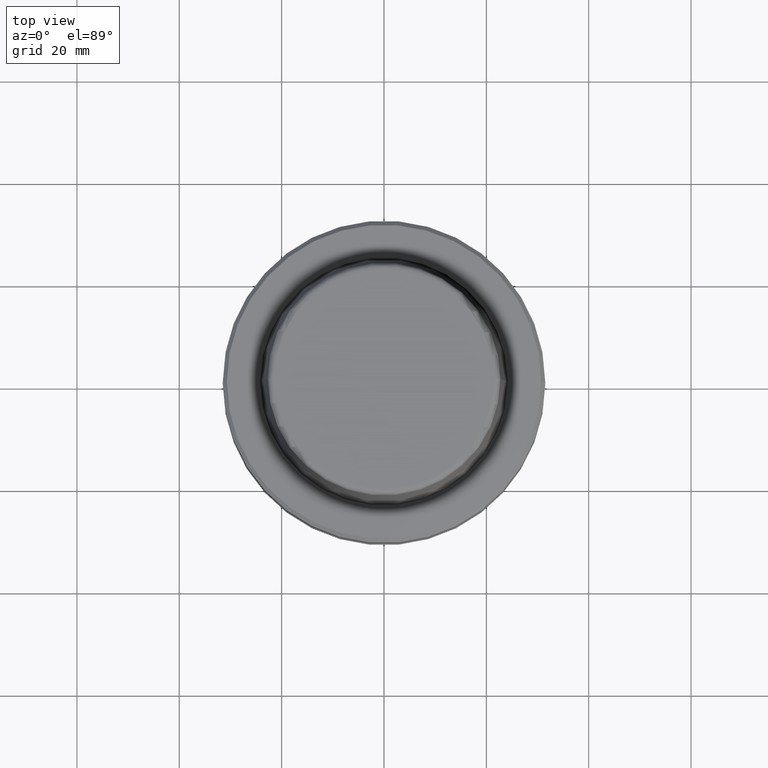
[diagram: clean part render]
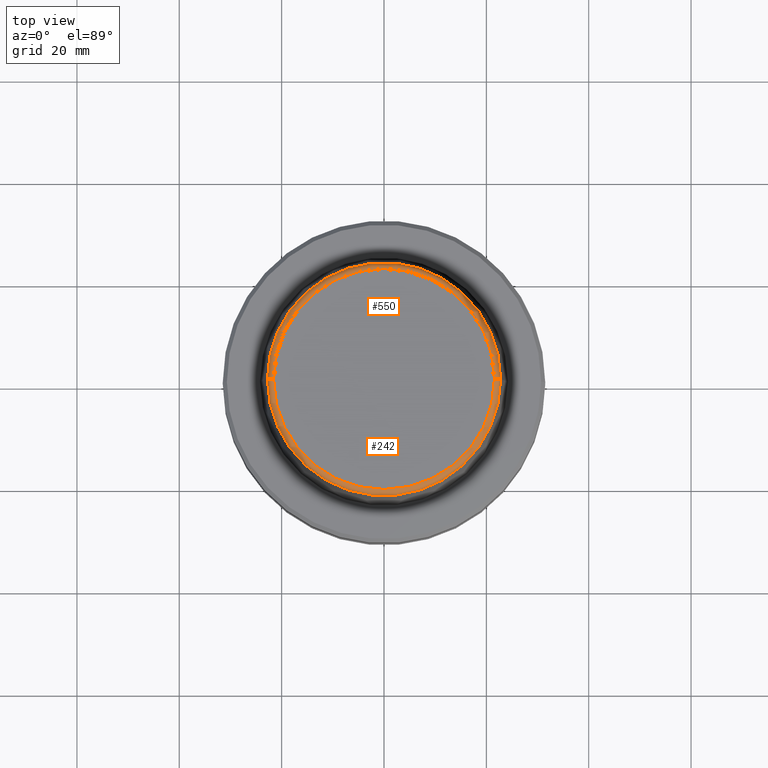
[diagram: same view with one multi-face feature highlighted, each face labeled with its STEP entity id]
A machine part, top view. The highlighted faces form ONE feature: a constant-radius fillet chain: 2 tangent blend faces with common blend radius 1.2 mm. The faces share edges in the B-rep.
Their STEP definitions:
[1] entity #242 (Torus):
#35 = DIRECTION ( 'NONE',  ( 1.000000000000000000, 0.0000000000000000000, 0.0000000000000000000 ) ) ;
#82 = AXIS2_PLACEMENT_3D ( 'NONE', #1126, #1120, #996 ) ;
#139 = CIRCLE ( 'NONE', #824, 22.77954767978229000 ) ;
#148 = EDGE_LOOP ( 'NONE', ( #1023, #189, #154, #311 ) ) ;
#154 = ORIENTED_EDGE ( 'NONE', *, *, #1402, .T. ) ;
#163 = AXIS2_PLACEMENT_3D ( 'NONE', #814, #1174, #706 ) ;
#189 = ORIENTED_EDGE ( 'NONE', *, *, #1314, .T. ) ;
#242 = ADVANCED_FACE ( 'NONE', ( #744 ), #1290, .T. ) ;
#311 = ORIENTED_EDGE ( 'NONE', *, *, #704, .F. ) ;
#315 = CARTESIAN_POINT ( 'NONE',  ( -21.58105086660076600, 2.716303250904432400E-015, 31.89999999999981700 ) ) ;
#375 = CARTESIAN_POINT ( 'NONE',  ( 22.77954767978229000, 2.876381753844083400E-015, 30.76004488982331300 ) ) ;
#431 = VERTEX_POINT ( 'NONE', #375 ) ;
#447 = CARTESIAN_POINT ( 'NONE',  ( -21.58105086660081900, 2.642916486601890300E-015, 30.69999999999995000 ) ) ;
#540 = AXIS2_PLACEMENT_3D ( 'NONE', #447, #863, #641 ) ;
#599 = CARTESIAN_POINT ( 'NONE',  ( 0.0000000000000000000, 0.0000000000000000000, 30.76004488982331300 ) ) ;
#608 = EDGE_CURVE ( 'NONE', #701, #1345, #1051, .T. ) ;
#641 = DIRECTION ( 'NONE',  ( -1.000000000000000000, 1.224646799147355700E-016, 0.0000000000000000000 ) ) ;
#701 = VERTEX_POINT ( 'NONE', #1321 ) ;
#704 = EDGE_CURVE ( 'NONE', #1345, #1405, #1175, .T. ) ;
#706 = DIRECTION ( 'NONE',  ( 1.000000000000000000, 0.0000000000000000000, 0.0000000000000000000 ) ) ;
#744 = FACE_OUTER_BOUND ( 'NONE', #148, .T. ) ;
#814 = CARTESIAN_POINT ( 'NONE',  ( 0.0000000000000000000, 0.0000000000000000000, 30.69999999999995000 ) ) ;
#824 = AXIS2_PLACEMENT_3D ( 'NONE', #599, #1134, #1014 ) ;
#833 = AXIS2_PLACEMENT_3D ( 'NONE', #1142, #990, #35 ) ;
#863 = DIRECTION ( 'NONE',  ( 1.224646799147353200E-016, 1.000000000000000000, 0.0000000000000000000 ) ) ;
#930 = CARTESIAN_POINT ( 'NONE',  ( 21.58105086660076600, 0.0000000000000000000, 31.89999999999981700 ) ) ;
#990 = DIRECTION ( 'NONE',  ( -0.0000000000000000000, -0.0000000000000000000, 1.000000000000000000 ) ) ;
#996 = DIRECTION ( 'NONE',  ( 0.0000000000000000000, 0.0000000000000000000, -1.000000000000000000 ) ) ;
#1014 = DIRECTION ( 'NONE',  ( 1.000000000000000000, 0.0000000000000000000, 0.0000000000000000000 ) ) ;
#1023 = ORIENTED_EDGE ( 'NONE', *, *, #608, .F. ) ;
#1051 = CIRCLE ( 'NONE', #540, 1.199999999999940700 ) ;
#1111 = CIRCLE ( 'NONE', #82, 1.199999999999940700 ) ;
#1120 = DIRECTION ( 'NONE',  ( 0.0000000000000000000, -1.000000000000000000, 0.0000000000000000000 ) ) ;
#1126 = CARTESIAN_POINT ( 'NONE',  ( 21.58105086660081900, 0.0000000000000000000, 30.69999999999995000 ) ) ;
#1134 = DIRECTION ( 'NONE',  ( -0.0000000000000000000, -0.0000000000000000000, 1.000000000000000000 ) ) ;
#1142 = CARTESIAN_POINT ( 'NONE',  ( 0.0000000000000000000, 0.0000000000000000000, 31.89999999999981700 ) ) ;
#1174 = DIRECTION ( 'NONE',  ( -0.0000000000000000000, -0.0000000000000000000, 1.000000000000000000 ) ) ;
#1175 = CIRCLE ( 'NONE', #833, 21.58105086660076600 ) ;
#1290 = TOROIDAL_SURFACE ( 'NONE', #163, 21.58105086660081900, 1.199999999999942200 ) ;
#1314 = EDGE_CURVE ( 'NONE', #701, #431, #139, .T. ) ;
#1321 = CARTESIAN_POINT ( 'NONE',  ( -22.77954767978229000, 0.0000000000000000000, 30.76004488982331300 ) ) ;
#1345 = VERTEX_POINT ( 'NONE', #315 ) ;
#1402 = EDGE_CURVE ( 'NONE', #431, #1405, #1111, .T. ) ;
#1405 = VERTEX_POINT ( 'NONE', #930 ) ;
[2] entity #550 (Torus):
#1 = ORIENTED_EDGE ( 'NONE', *, *, #608, .T. ) ;
#82 = AXIS2_PLACEMENT_3D ( 'NONE', #1126, #1120, #996 ) ;
#219 = DIRECTION ( 'NONE',  ( -0.0000000000000000000, -0.0000000000000000000, 1.000000000000000000 ) ) ;
#230 = AXIS2_PLACEMENT_3D ( 'NONE', #861, #219, #1227 ) ;
#248 = EDGE_CURVE ( 'NONE', #431, #701, #950, .T. ) ;
#271 = CIRCLE ( 'NONE', #631, 21.58105086660076600 ) ;
#315 = CARTESIAN_POINT ( 'NONE',  ( -21.58105086660076600, 2.716303250904432400E-015, 31.89999999999981700 ) ) ;
#375 = CARTESIAN_POINT ( 'NONE',  ( 22.77954767978229000, 2.876381753844083400E-015, 30.76004488982331300 ) ) ;
#431 = VERTEX_POINT ( 'NONE', #375 ) ;
#447 = CARTESIAN_POINT ( 'NONE',  ( -21.58105086660081900, 2.642916486601890300E-015, 30.69999999999995000 ) ) ;
#478 = AXIS2_PLACEMENT_3D ( 'NONE', #1060, #966, #488 ) ;
#488 = DIRECTION ( 'NONE',  ( 1.000000000000000000, 0.0000000000000000000, 0.0000000000000000000 ) ) ;
#540 = AXIS2_PLACEMENT_3D ( 'NONE', #447, #863, #641 ) ;
#550 = ADVANCED_FACE ( 'NONE', ( #1039 ), #784, .T. ) ;
#608 = EDGE_CURVE ( 'NONE', #701, #1345, #1051, .T. ) ;
#631 = AXIS2_PLACEMENT_3D ( 'NONE', #1035, #735, #1064 ) ;
#641 = DIRECTION ( 'NONE',  ( -1.000000000000000000, 1.224646799147355700E-016, 0.0000000000000000000 ) ) ;
#701 = VERTEX_POINT ( 'NONE', #1321 ) ;
#735 = DIRECTION ( 'NONE',  ( -0.0000000000000000000, -0.0000000000000000000, 1.000000000000000000 ) ) ;
#751 = ORIENTED_EDGE ( 'NONE', *, *, #1050, .F. ) ;
#763 = ORIENTED_EDGE ( 'NONE', *, *, #248, .T. ) ;
#784 = TOROIDAL_SURFACE ( 'NONE', #478, 21.58105086660081900, 1.199999999999942200 ) ;
#861 = CARTESIAN_POINT ( 'NONE',  ( 0.0000000000000000000, 0.0000000000000000000, 30.76004488982331300 ) ) ;
#863 = DIRECTION ( 'NONE',  ( 1.224646799147353200E-016, 1.000000000000000000, 0.0000000000000000000 ) ) ;
#930 = CARTESIAN_POINT ( 'NONE',  ( 21.58105086660076600, 0.0000000000000000000, 31.89999999999981700 ) ) ;
#950 = CIRCLE ( 'NONE', #230, 22.77954767978229000 ) ;
#966 = DIRECTION ( 'NONE',  ( -0.0000000000000000000, -0.0000000000000000000, 1.000000000000000000 ) ) ;
#996 = DIRECTION ( 'NONE',  ( 0.0000000000000000000, 0.0000000000000000000, -1.000000000000000000 ) ) ;
#1035 = CARTESIAN_POINT ( 'NONE',  ( 0.0000000000000000000, 0.0000000000000000000, 31.89999999999981700 ) ) ;
#1039 = FACE_OUTER_BOUND ( 'NONE', #1117, .T. ) ;
#1050 = EDGE_CURVE ( 'NONE', #1405, #1345, #271, .T. ) ;
#1051 = CIRCLE ( 'NONE', #540, 1.199999999999940700 ) ;
#1060 = CARTESIAN_POINT ( 'NONE',  ( 0.0000000000000000000, 0.0000000000000000000, 30.69999999999995000 ) ) ;
#1064 = DIRECTION ( 'NONE',  ( 1.000000000000000000, 0.0000000000000000000, 0.0000000000000000000 ) ) ;
#1111 = CIRCLE ( 'NONE', #82, 1.199999999999940700 ) ;
#1117 = EDGE_LOOP ( 'NONE', ( #763, #1, #751, #1266 ) ) ;
#1120 = DIRECTION ( 'NONE',  ( 0.0000000000000000000, -1.000000000000000000, 0.0000000000000000000 ) ) ;
#1126 = CARTESIAN_POINT ( 'NONE',  ( 21.58105086660081900, 0.0000000000000000000, 30.69999999999995000 ) ) ;
#1227 = DIRECTION ( 'NONE',  ( 1.000000000000000000, 0.0000000000000000000, 0.0000000000000000000 ) ) ;
#1266 = ORIENTED_EDGE ( 'NONE', *, *, #1402, .F. ) ;
#1321 = CARTESIAN_POINT ( 'NONE',  ( -22.77954767978229000, 0.0000000000000000000, 30.76004488982331300 ) ) ;
#1345 = VERTEX_POINT ( 'NONE', #315 ) ;
#1402 = EDGE_CURVE ( 'NONE', #431, #1405, #1111, .T. ) ;
#1405 = VERTEX_POINT ( 'NONE', #930 ) ;